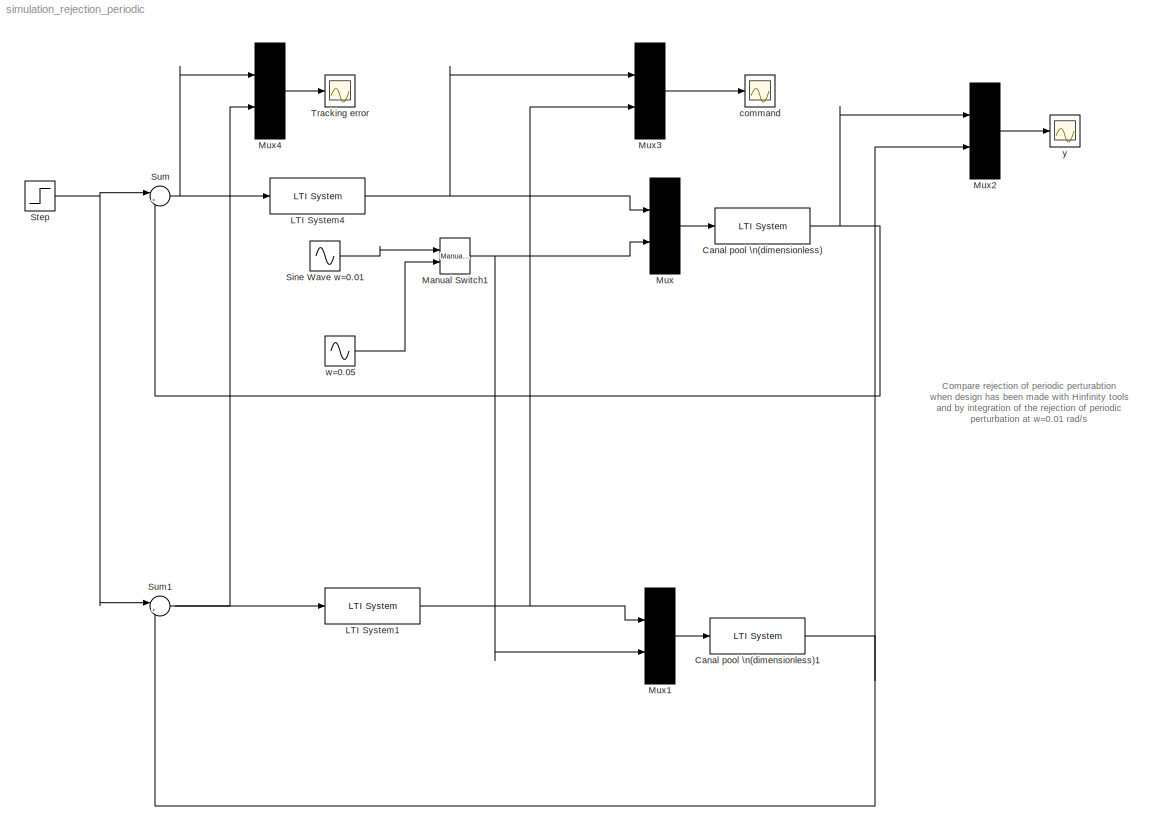
MODEL simulation_rejection_periodic
KIND model
BLOCK [Reference] Canal pool \n(dimensionless)  REF=cstblocks/LTI System
  IC = 0
  Ports = [1, 1]
  ShowPortLabels = on
  SourceBlock = cstblocks/LTI System
  SourceType = LTI Block
  sys = sys_bo_ss
BLOCK [Reference] Canal pool \n(dimensionless)1  REF=cstblocks/LTI System
  IC = 0
  Ports = [1, 1]
  ShowPortLabels = on
  SourceBlock = cstblocks/LTI System
  SourceType = LTI Block
  sys = sys_bo_ss
BLOCK [Reference] LTI System1  REF=cstblocks/LTI System
  IC = 0
  Ports = [1, 1]
  ShowPortLabels = on
  SourceBlock = cstblocks/LTI System
  SourceType = LTI Block
  sys = K_PI_ss
BLOCK [Reference] LTI System4  REF=cstblocks/LTI System
  IC = 0
  Ports = [1, 1]
  ShowPortLabels = on
  SourceBlock = cstblocks/LTI System
  SourceType = LTI Block
  sys = K_hinf_ss
BLOCK [Reference] Manual Switch1  REF=simulink/Signal\nRouting/Manual Switch
  Ports = [2, 1]
  ShowPortLabels = on
  SourceBlock = simulink/Signal\nRouting/Manual Switch
  SourceType = Manual Switch
  action = 0
  sw = 1
BLOCK [Mux] Mux
  Inputs = 2
  Ports = [2, 1]
BLOCK [Mux] Mux1
  Inputs = 2
  Ports = [2, 1]
BLOCK [Mux] Mux2
  Inputs = 2
  Ports = [2, 1]
BLOCK [Mux] Mux3
  Inputs = 2
  Ports = [2, 1]
BLOCK [Mux] Mux4
  Inputs = 2
  Ports = [2, 1]
BLOCK [Sin] Sine Wave w=0.01
  Frequency = 0.01
  Ports = [0, 1]
  SampleTime = 0
  SineType = Time based
BLOCK [Step] Step
  SampleTime = 0
BLOCK [Sum] Sum
  IconShape = round
  Inputs = |+-
  Ports = [2, 1]
BLOCK [Sum] Sum1
  IconShape = round
  Inputs = |+-
  Ports = [2, 1]
BLOCK [Scope] Tracking  error
  DataFormat = Array
  Floating = off
  NumInputPorts = 1
  Ports = [1]
  SampleTime = 0
  SaveName = e
  SaveToWorkspace = on
BLOCK [Scope] command
  DataFormat = Array
  Floating = off
  LimitDataPoints = off
  NumInputPorts = 1
  Ports = [1]
  SampleTime = 0
  SaveName = u
  SaveToWorkspace = on
BLOCK [Sin] w=0.05
  Frequency = 0.05
  Ports = [0, 1]
  SampleTime = 0
  SineType = Time based
BLOCK [Scope] y
  DataFormat = Array
  Floating = off
  LimitDataPoints = off
  NumInputPorts = 1
  Ports = [1]
  SampleTime = 0.1
  SaveName = y
  SaveToWorkspace = on
  TimeRange = 10000
  YMax = 1.3
  YMin = -0.1
ANNOTATION (root): Compare rejection of periodic perturabtion \nwhen design has been made with Hinfinity tools \nand by integration of the rejection of periodic \nperturbation at w=0.01 rad/s
NET Canal pool \n(dimensionless)1:1 -> Mux2:2, Sum1:2
NET Canal pool \n(dimensionless):1 -> Mux2:1, Sum:2
NET LTI System1:1 -> Mux1:1, Mux3:2
NET LTI System4:1 -> Mux3:1, Mux:1
NET Manual Switch1:1 -> Mux1:2, Mux:2
LINE Mux1:1 -> Canal pool \n(dimensionless)1:1
LINE Mux2:1 -> y:1
LINE Mux3:1 -> command:1
LINE Mux4:1 -> Tracking  error:1
LINE Mux:1 -> Canal pool \n(dimensionless):1
LINE Sine Wave w=0.01:1 -> Manual Switch1:1
NET Step:1 -> Sum1:1, Sum:1
NET Sum1:1 -> LTI System1:1, Mux4:2
NET Sum:1 -> LTI System4:1, Mux4:1
LINE w=0.05:1 -> Manual Switch1:2
note: NET lines group one-source signal fan-out (src -> all destinations, sorted); 1:1 wires keep LINE
